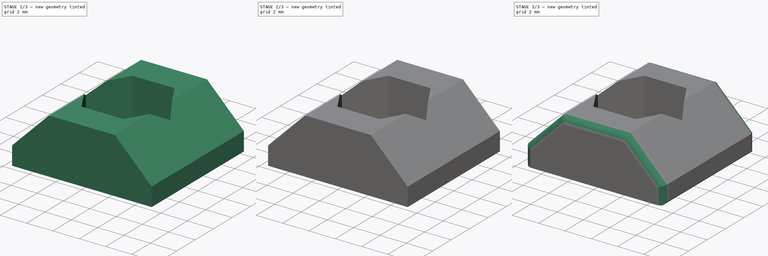
[diagram: build sequence overview — one tinted view per stage of 3, left to right]
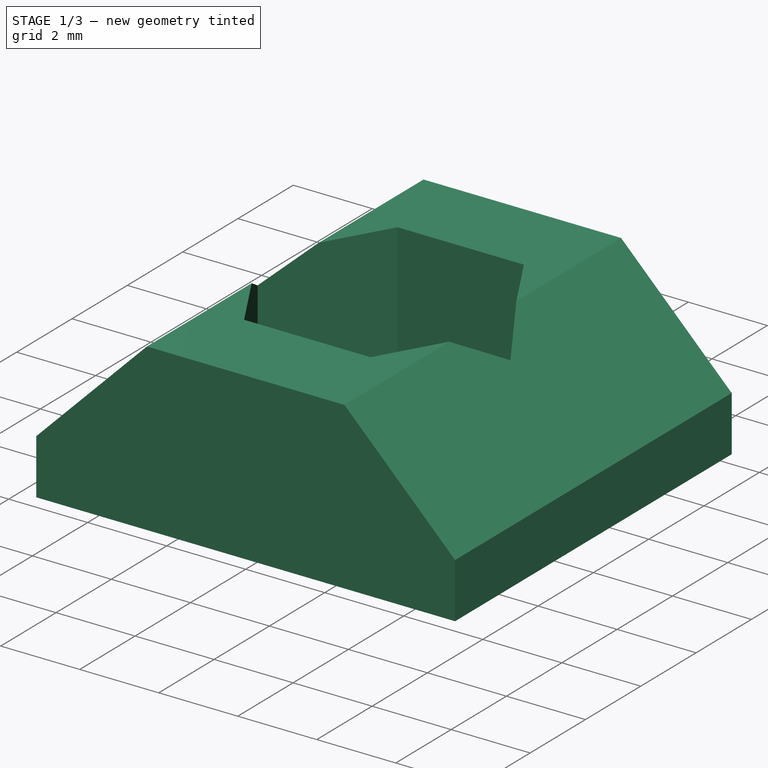
[diagram: stage 1 of 3 — iso view after this stage's code; geometry added in this stage tinted green]
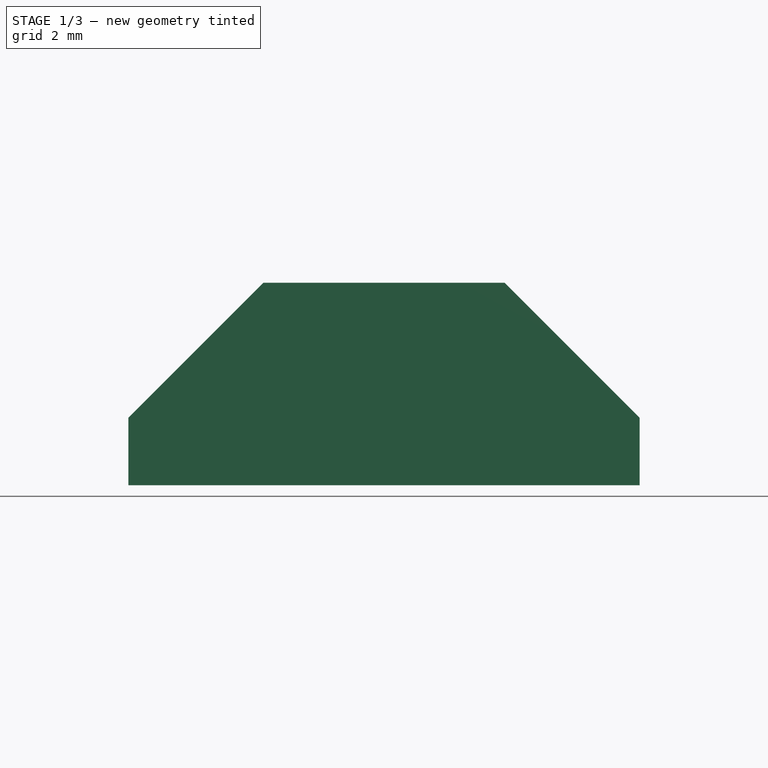
[diagram: stage 1 of 3 — front view after this stage's code; geometry added in this stage tinted green]
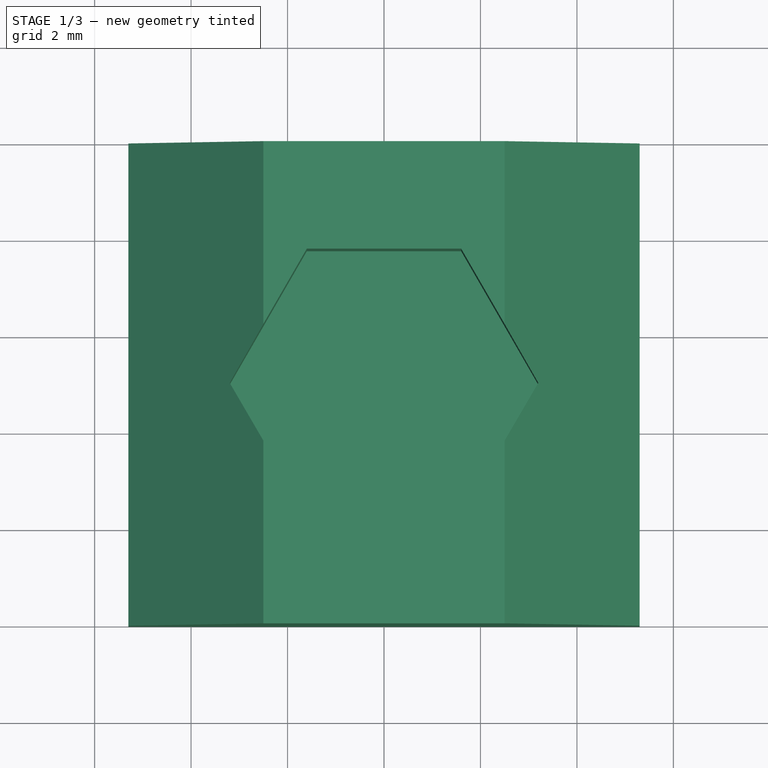
[diagram: stage 1 of 3 — top view after this stage's code; geometry added in this stage tinted green]
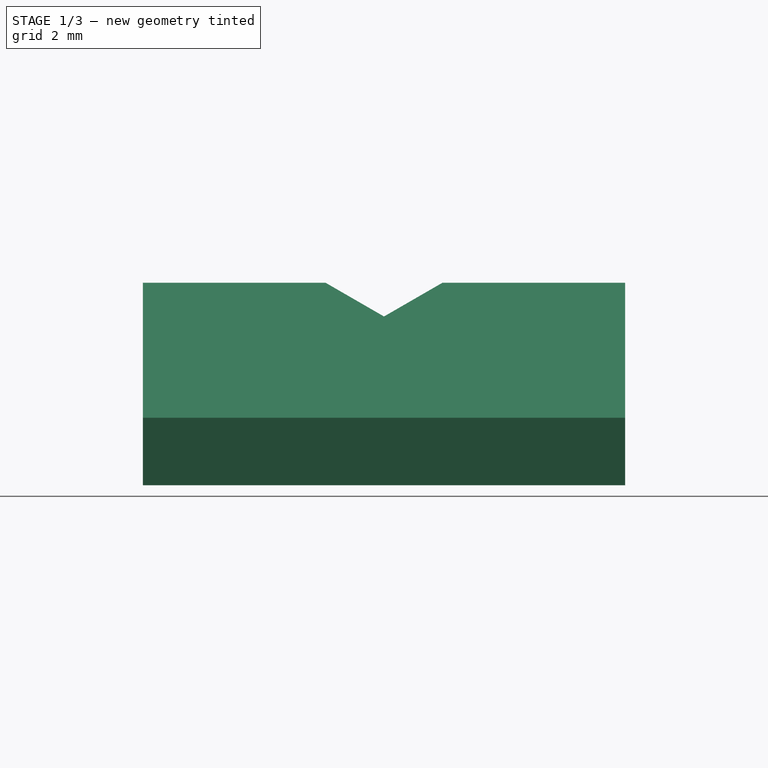
[diagram: stage 1 of 3 — right view after this stage's code; geometry added in this stage tinted green]
FCSTD DOCUMENT  (FreeCAD 0.15R4671 (Git))
Label: t-nut-shell
License: All rights reserved
LicenseURL: https://ru.wikipedia.org/wiki/All_rights_reserved
objects: Sketcher::SketchObject×3, PartDesign::Pocket×2, Part::Chamfer×2, PartDesign::Pad×1, Part::Fillet×1
note: 12 computed .brp shape members not serialized (recipe doc carries the construction recipe); baked Part::Feature solids carry a one-line shape summary decoded from their .brp

FEATURE [Sketcher::SketchObject] Sketch  label="body"
  Placement = pos=(0,0,0) rot=(1,0,0;1.5708rad)
  sketch-geometry (6):
    g0: LineSegment StartX=-5.3 StartY=0 StartZ=0 EndX=5.3 EndY=0 EndZ=0
    g1: LineSegment StartX=5.3 StartY=0 StartZ=0 EndX=5.3 EndY=1.4 EndZ=0
    g2: LineSegment StartX=5.3 StartY=1.4 StartZ=0 EndX=2.5 EndY=4.2 EndZ=0
    g3: LineSegment StartX=2.5 StartY=4.2 StartZ=0 EndX=-2.5 EndY=4.2 EndZ=0
    g4: LineSegment StartX=-2.5 StartY=4.2 StartZ=0 EndX=-5.3 EndY=1.4 EndZ=0
    g5: LineSegment StartX=-5.3 StartY=1.4 StartZ=0 EndX=-5.3 EndY=0 EndZ=0
  constraints (18):
    c: Horizontal(g0)
    c: Coincident(g0,g1)
    c: Vertical(g1)
    c: Coincident(g1,g2)
    c: Coincident(g2,g3)
    c: Horizontal(g3)
    c: Coincident(g3,g4)
    c: Coincident(g4,g5)
    c: Coincident(g5,g0)
    c: Vertical(g5)
    c: DistanceX(g0,g0) = 10.6
    c: DistanceY(g2,g0) = -4.2
    c: Equal(g5,g1)
    c: Symmetric(g3,g2,g-2)
    c: Symmetric(g0,g0,g-2)
    c: DistanceY(g0,g1) = 1.4
    c: Angle(g2,g0) = 0.785398
    c: PointOnObject(g-1,g0)
FEATURE [PartDesign::Pad] Pad
  Length = 10
  Length2 = 100
  Placement = pos=(0,0,0) rot=(1,0,0;1.5708rad)
  Sketch = -> Sketch
  Type = 0
FEATURE [Sketcher::SketchObject] Sketch001  label="nut"
  ExternalGeometry = -> [Pad]
  Placement = pos=(0,0,4.2) rot=(0,0,1;3.14159rad)
  Support = -> Pad [Face4]
  sketch-geometry (9):
    g0: LineSegment StartX=1.6 StartY=2.22872 StartZ=0 EndX=3.2 EndY=5 EndZ=0
    g1: LineSegment StartX=3.2 StartY=5 StartZ=0 EndX=1.6 EndY=7.77128 EndZ=0
    g2: LineSegment StartX=1.6 StartY=7.77128 StartZ=0 EndX=-1.6 EndY=7.77128 EndZ=0
    g3: LineSegment StartX=-1.6 StartY=7.77128 StartZ=0 EndX=-3.2 EndY=5 EndZ=0
    g4: LineSegment StartX=-3.2 StartY=5 StartZ=0 EndX=-1.6 EndY=2.22872 EndZ=0
    g5: LineSegment StartX=-1.6 StartY=2.22872 StartZ=0 EndX=1.6 EndY=2.22872 EndZ=0
    g6: Circle [constr] CenterX=0 CenterY=5 CenterZ=0 NormalX=0 NormalY=0 NormalZ=1 Radius=3.2
    g7: LineSegment [constr] StartX=0 StartY=10 StartZ=0 EndX=0 EndY=5 EndZ=0
    g8: LineSegment [constr] StartX=0 StartY=5 StartZ=0 EndX=0 EndY=0 EndZ=0
  constraints (22):
    c: Coincident(g0,g1)
    c: Coincident(g1,g2)
    c: Coincident(g2,g3)
    c: Coincident(g3,g4)
    c: Coincident(g4,g5)
    c: Coincident(g5,g0)
    c: Equal(g0, g1-g5) x5
    c: PointOnObject(g0,g6)
    c: PointOnObject(g1,g6)
    c: PointOnObject(g2,g6)
    c: PointOnObject(g3,g6)
    c: PointOnObject(g4,g6)
    c: PointOnObject(g5,g6)
    c: PointOnObject(g6,g-2)
    c: Horizontal(g5)
    c: Radius(g6) = 3.2
    c: PointOnObject(g7,g-3)
    c: Coincident(g7,g6)
    c: Vertical(g7)
    c: Coincident(g8,g6)
    c: Coincident(g8,g-1)
    c: Equal(g7,g8)
FEATURE [PartDesign::Pocket] Pocket
  Length = 3.1
  Placement = pos=(0,0,0) rot=(1,0,0;1.5708rad)
  Sketch = -> Sketch001
  Type = 0
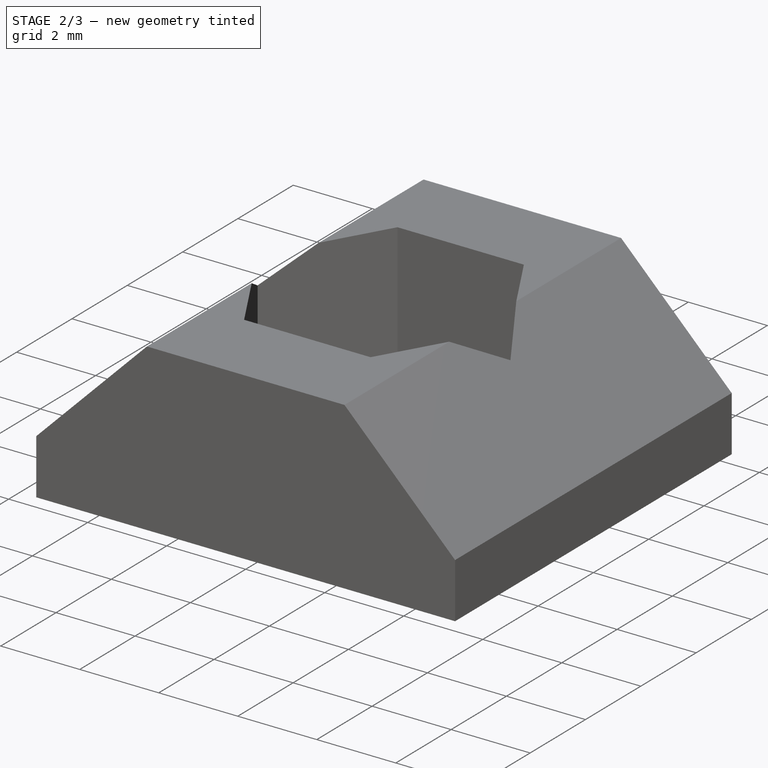
[diagram: stage 2 of 3 — iso view after this stage's code; geometry added in this stage tinted green]
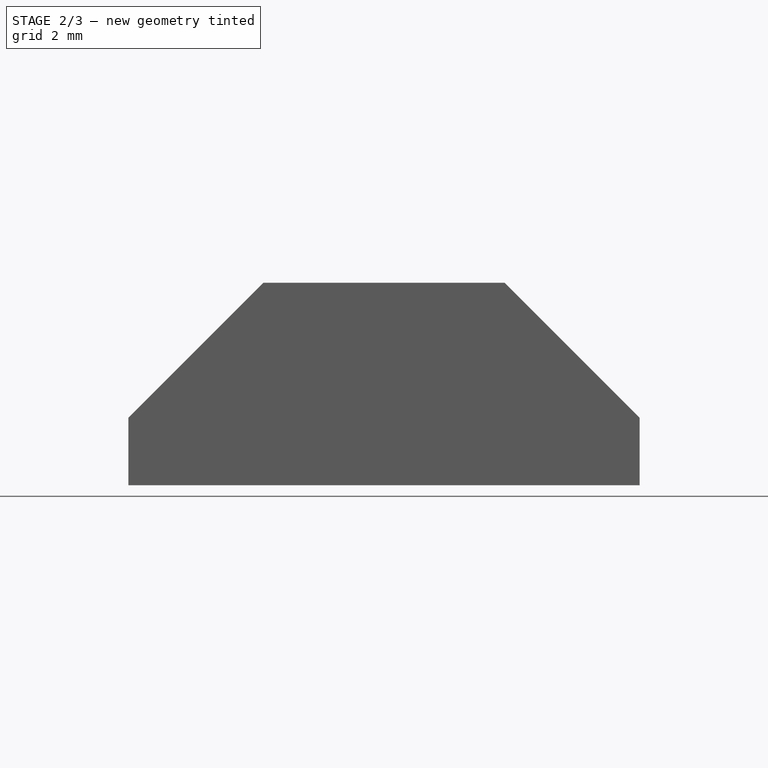
[diagram: stage 2 of 3 — front view after this stage's code; geometry added in this stage tinted green]
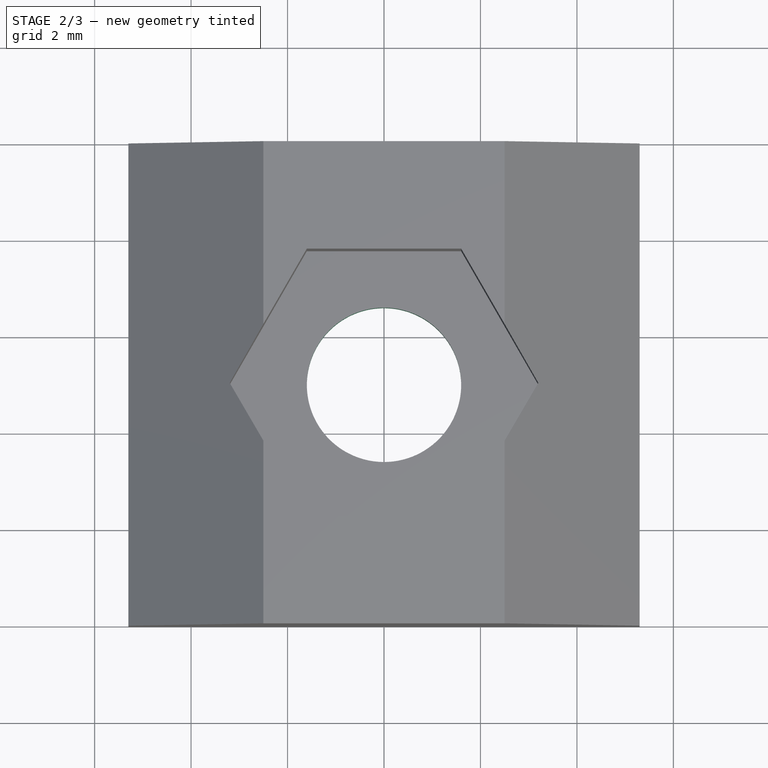
[diagram: stage 2 of 3 — top view after this stage's code; geometry added in this stage tinted green]
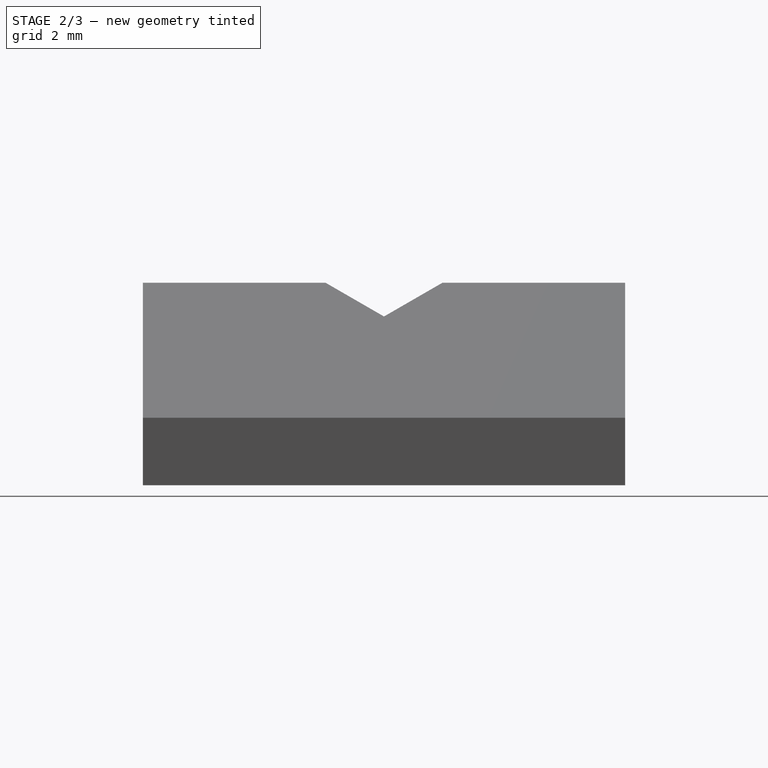
[diagram: stage 2 of 3 — right view after this stage's code; geometry added in this stage tinted green]
FEATURE [Sketcher::SketchObject] Sketch002  label="m3 hole"
  ExternalGeometry = -> [Pocket]
  Placement = pos=(0,0,0) rot=(1,0,0;3.14159rad)
  Support = -> Pocket [Face1]
  sketch-geometry (3):
    g0: Circle CenterX=0 CenterY=5 CenterZ=0 NormalX=0 NormalY=0 NormalZ=1 Radius=1.6
    g1: LineSegment [constr] StartX=0 StartY=10 StartZ=0 EndX=0 EndY=5 EndZ=0
    g2: LineSegment [constr] StartX=0 StartY=0 StartZ=0 EndX=0 EndY=5 EndZ=0
  constraints (8):
    c: Radius(g0) = 1.6
    c: PointOnObject(g1,g-3)
    c: Coincident(g1,g0)
    c: Vertical(g1)
    c: Coincident(g2,g-1)
    c: Coincident(g2,g0)
    c: Vertical(g2)
    c: Equal(g1,g2)
FEATURE [PartDesign::Pocket] Pocket001
  Length = 5
  Placement = pos=(0,0,0) rot=(1,0,0;1.5708rad)
  Sketch = -> Sketch002
  Type = 1
FEATURE [Part::Chamfer] Chamfer
  Base = -> Pocket001
  Edges = 1 edges r=0.4: [Edge5]
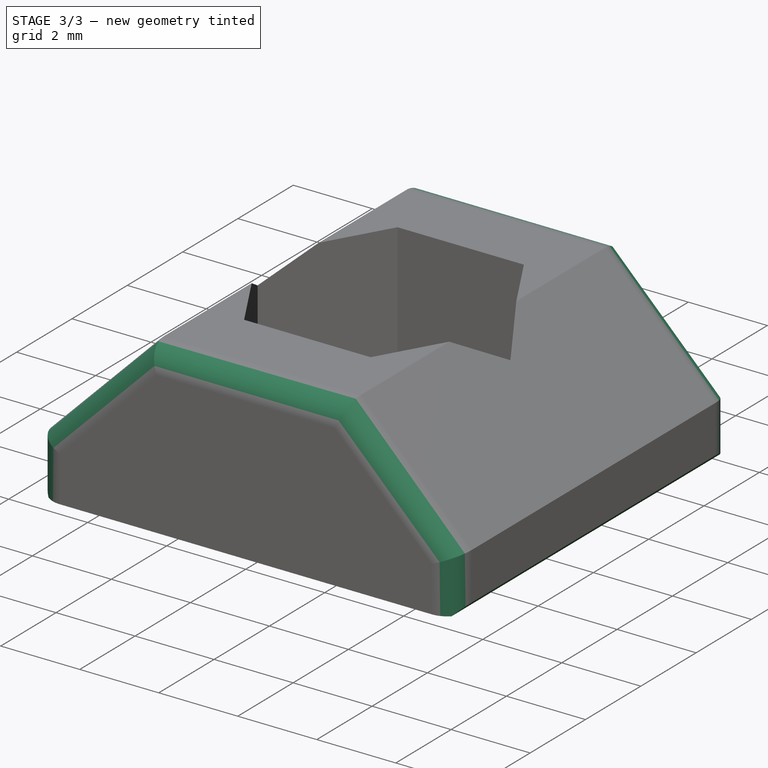
[diagram: stage 3 of 3 — iso view after this stage's code; geometry added in this stage tinted green]
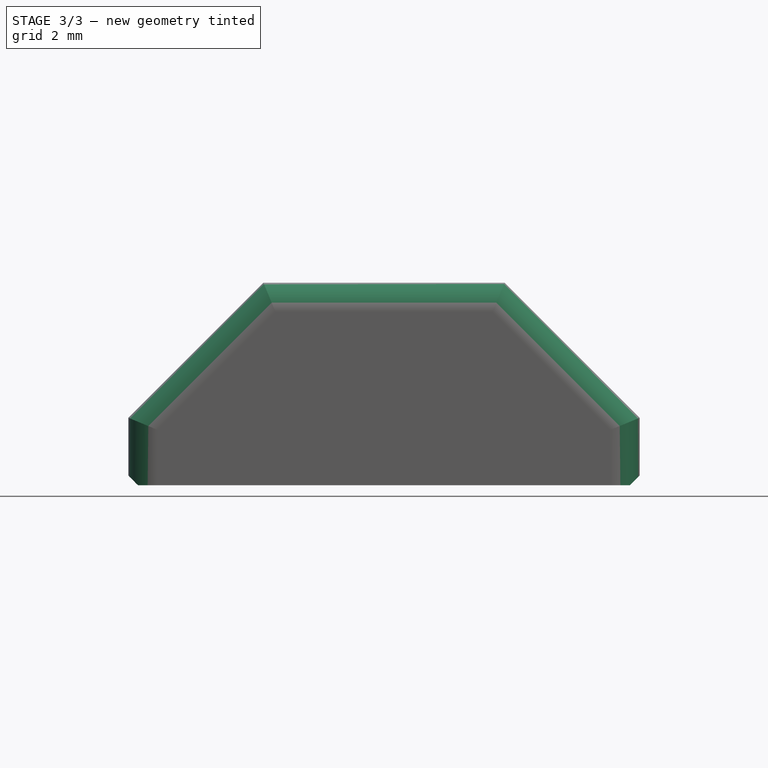
[diagram: stage 3 of 3 — front view after this stage's code; geometry added in this stage tinted green]
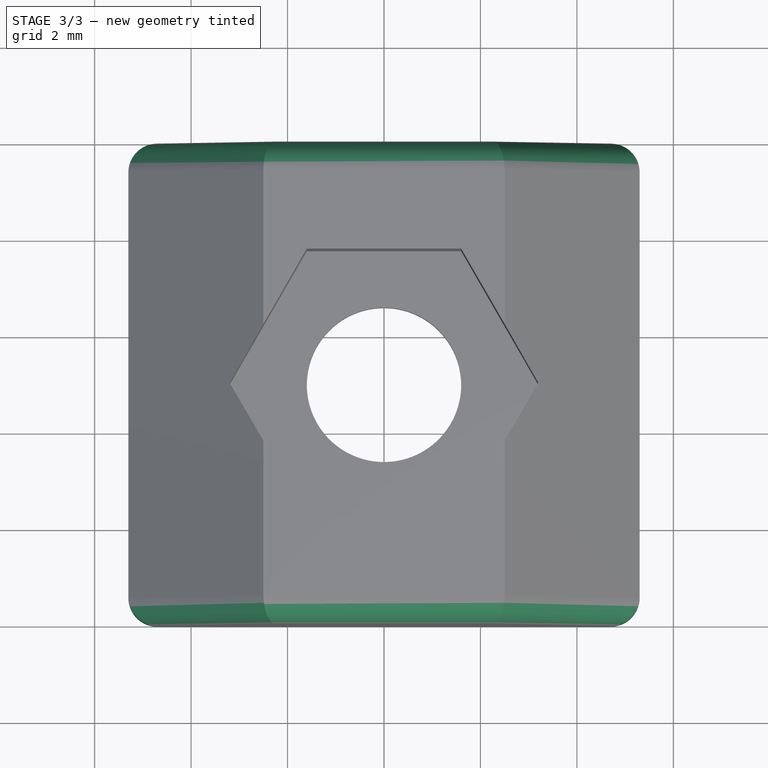
[diagram: stage 3 of 3 — top view after this stage's code; geometry added in this stage tinted green]
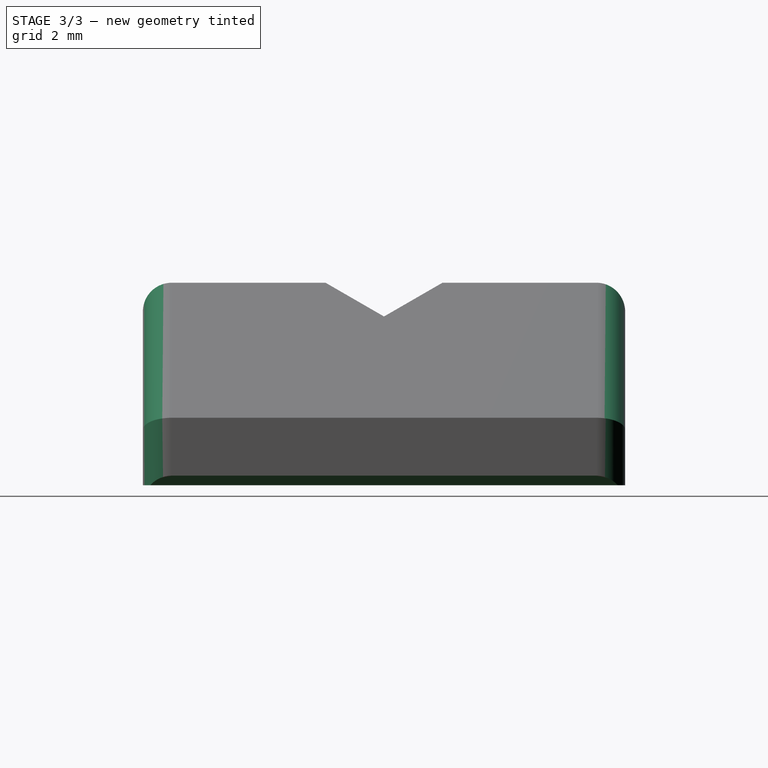
[diagram: stage 3 of 3 — right view after this stage's code; geometry added in this stage tinted green]
FEATURE [Part::Chamfer] Chamfer001
  Base = -> Chamfer
  Edges = 2 edges r=0.2: [Edge2,Edge5]
FEATURE [Part::Fillet] Fillet
  Base = -> Chamfer001
  Edges = 10 edges r=0.6: [Edge8,Edge9,Edge10,Edge11,Edge12,Edge17,Edge18,Edge19,Edge20,Edge21]
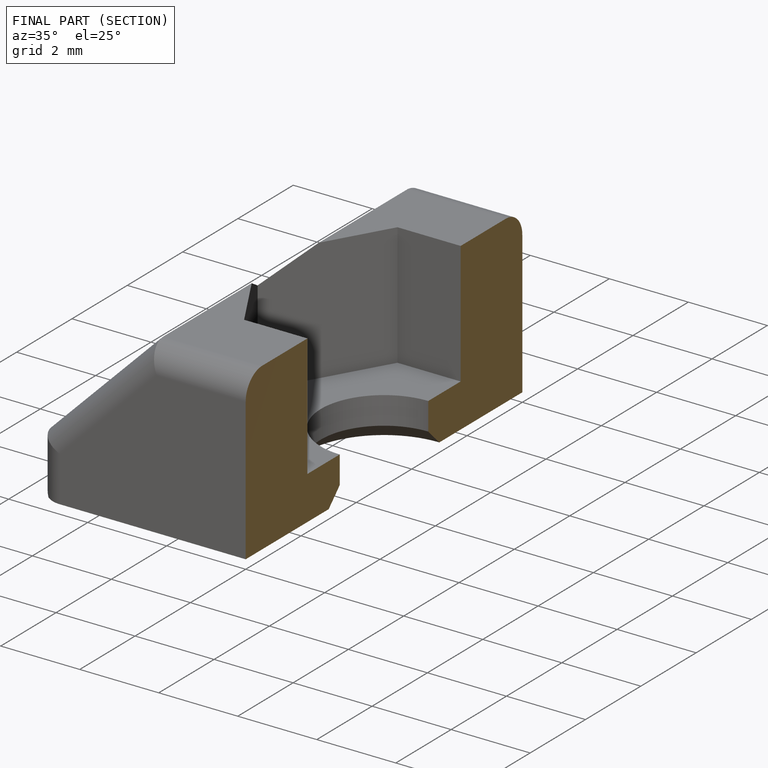
[diagram: finished part — half-section view (interior)]
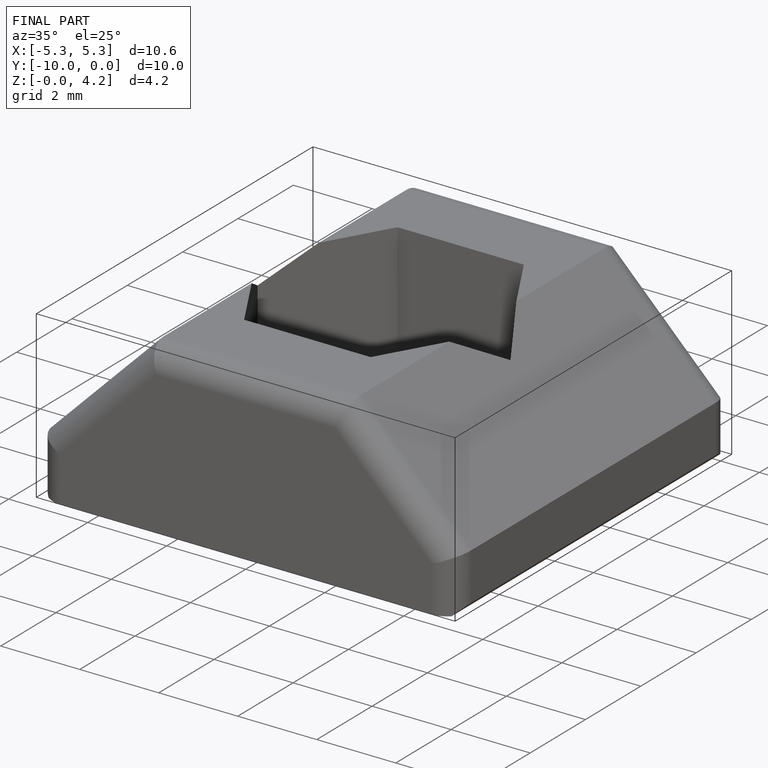
[diagram: finished part — iso view with bounding-box wireframe]
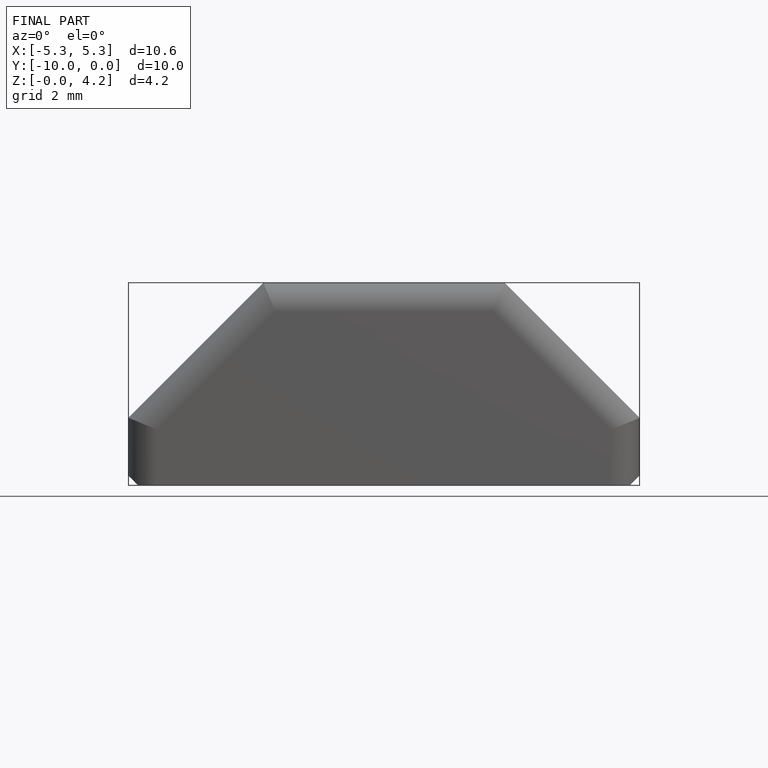
[diagram: finished part — front view with bounding-box wireframe]
